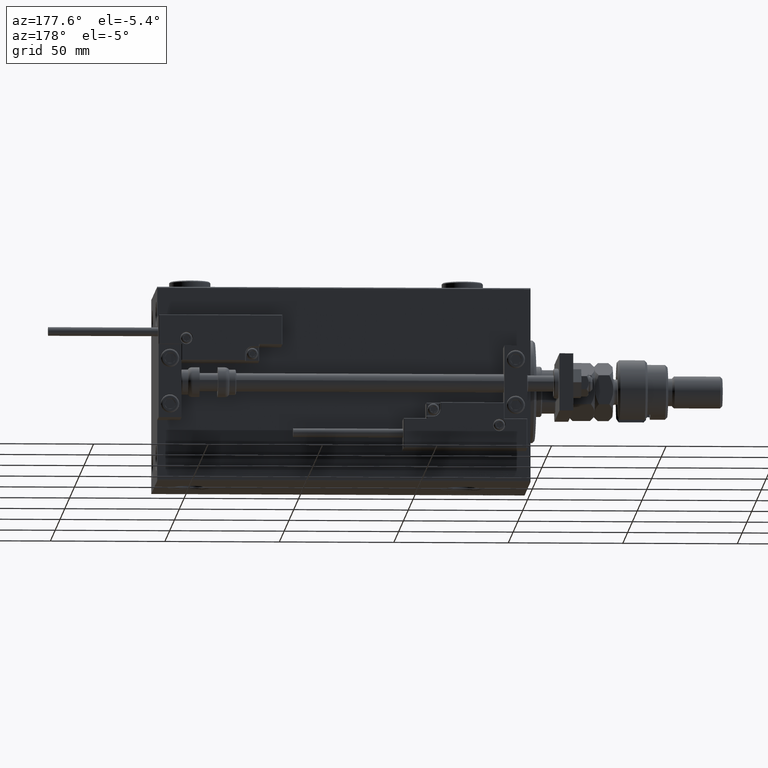
[diagram: clean part render]
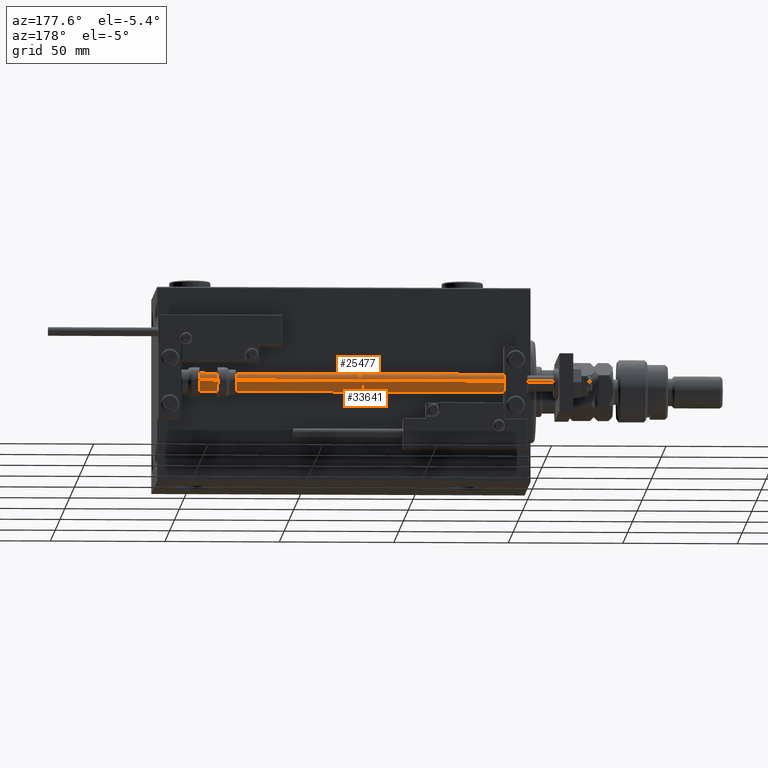
[diagram: same view with one multi-face feature highlighted, each face labeled with its STEP entity id]
A machine part, auxiliary view. The highlighted faces form ONE feature: a constant-radius fillet chain: 2 tangent blend faces with common blend radius 4 mm. The faces share edges in the B-rep.
Their STEP definitions:
[1] entity #25477 (Cylinder):
#4516 = ORIENTED_EDGE ( 'NONE', *, *, #31165, .T. ) ;
#7116 = EDGE_CURVE ( 'NONE', #43759, #46166, #7421, .T. ) ;
#7311 = DIRECTION ( 'NONE',  ( -0.000000000000000000, -0.000000000000000000, 1.000000000000000000 ) ) ;
#7421 = LINE ( 'NONE', #33985, #15289 ) ;
#7492 = CARTESIAN_POINT ( 'NONE',  ( 4.000000000000000000, 4.898587196589412829E-16, 2.000000000000029310 ) ) ;
#8348 = CARTESIAN_POINT ( 'NONE',  ( 4.000000000000000000, 4.898587196589412829E-16, 163.0000000000000000 ) ) ;
#15289 = VECTOR ( 'NONE', #20283, 1000.000000000000000 ) ;
#16064 = EDGE_LOOP ( 'NONE', ( #41804, #4516, #23869, #33164 ) ) ;
#16623 = DIRECTION ( 'NONE',  ( -0.000000000000000000, -0.000000000000000000, -1.000000000000000000 ) ) ;
#17542 = CYLINDRICAL_SURFACE ( 'NONE', #18477, 4.000000000000000000 ) ;
#18477 = AXIS2_PLACEMENT_3D ( 'NONE', #48596, #39646, #27033 ) ;
#19425 = CARTESIAN_POINT ( 'NONE',  ( 0.000000000000000000, 0.000000000000000000, 163.0000000000000000 ) ) ;
#20182 = DIRECTION ( 'NONE',  ( 1.000000000000000000, 0.000000000000000000, 0.000000000000000000 ) ) ;
#20283 = DIRECTION ( 'NONE',  ( -0.000000000000000000, -0.000000000000000000, -1.000000000000000000 ) ) ;
#21444 = FACE_OUTER_BOUND ( 'NONE', #16064, .T. ) ;
#21914 = LINE ( 'NONE', #24992, #48186 ) ;
#23869 = ORIENTED_EDGE ( 'NONE', *, *, #32689, .T. ) ;
#24982 = AXIS2_PLACEMENT_3D ( 'NONE', #28562, #7311, #20182 ) ;
#24992 = CARTESIAN_POINT ( 'NONE',  ( 4.000000000000000000, 4.898587196589412829E-16, 163.0000000000000000 ) ) ;
#25477 = ADVANCED_FACE ( 'NONE', ( #21444 ), #17542, .T. ) ;
#27033 = DIRECTION ( 'NONE',  ( -1.000000000000000000, 0.000000000000000000, 0.000000000000000000 ) ) ;
#27414 = VERTEX_POINT ( 'NONE', #7492 ) ;
#28562 = CARTESIAN_POINT ( 'NONE',  ( 0.000000000000000000, 0.000000000000000000, 2.000000000000029310 ) ) ;
#30204 = CARTESIAN_POINT ( 'NONE',  ( -4.000000000000000000, 0.000000000000000000, 2.000000000000029310 ) ) ;
#31165 = EDGE_CURVE ( 'NONE', #46437, #27414, #21914, .T. ) ;
#32689 = EDGE_CURVE ( 'NONE', #27414, #46166, #35740, .T. ) ;
#33132 = AXIS2_PLACEMENT_3D ( 'NONE', #19425, #54707, #45186 ) ;
#33164 = ORIENTED_EDGE ( 'NONE', *, *, #7116, .F. ) ;
#33985 = CARTESIAN_POINT ( 'NONE',  ( -4.000000000000000000, 0.000000000000000000, 163.0000000000000000 ) ) ;
#35740 = CIRCLE ( 'NONE', #24982, 4.000000000000000000 ) ;
#35823 = CIRCLE ( 'NONE', #33132, 4.000000000000000000 ) ;
#36132 = CARTESIAN_POINT ( 'NONE',  ( -4.000000000000000000, 0.000000000000000000, 163.0000000000000000 ) ) ;
#37801 = EDGE_CURVE ( 'NONE', #46437, #43759, #35823, .T. ) ;
#39646 = DIRECTION ( 'NONE',  ( -0.000000000000000000, -0.000000000000000000, -1.000000000000000000 ) ) ;
#41804 = ORIENTED_EDGE ( 'NONE', *, *, #37801, .F. ) ;
#43759 = VERTEX_POINT ( 'NONE', #36132 ) ;
#45186 = DIRECTION ( 'NONE',  ( 1.000000000000000000, 0.000000000000000000, 0.000000000000000000 ) ) ;
#46166 = VERTEX_POINT ( 'NONE', #30204 ) ;
#46437 = VERTEX_POINT ( 'NONE', #8348 ) ;
#48186 = VECTOR ( 'NONE', #16623, 1000.000000000000000 ) ;
#48596 = CARTESIAN_POINT ( 'NONE',  ( 0.000000000000000000, 0.000000000000000000, 163.0000000000000000 ) ) ;
#54707 = DIRECTION ( 'NONE',  ( 0.000000000000000000, 0.000000000000000000, 1.000000000000000000 ) ) ;
[2] entity #33641 (Cylinder):
#159 = CARTESIAN_POINT ( 'NONE',  ( 0.000000000000000000, 0.000000000000000000, 163.0000000000000000 ) ) ;
#1447 = DIRECTION ( 'NONE',  ( 0.000000000000000000, 0.000000000000000000, 1.000000000000000000 ) ) ;
#4403 = CARTESIAN_POINT ( 'NONE',  ( 0.000000000000000000, 0.000000000000000000, 2.000000000000029310 ) ) ;
#4882 = AXIS2_PLACEMENT_3D ( 'NONE', #10669, #1447, #18539 ) ;
#7077 = EDGE_LOOP ( 'NONE', ( #24803, #17957, #16569, #19376 ) ) ;
#7116 = EDGE_CURVE ( 'NONE', #43759, #46166, #7421, .T. ) ;
#7421 = LINE ( 'NONE', #33985, #15289 ) ;
#7492 = CARTESIAN_POINT ( 'NONE',  ( 4.000000000000000000, 4.898587196589412829E-16, 2.000000000000029310 ) ) ;
#8348 = CARTESIAN_POINT ( 'NONE',  ( 4.000000000000000000, 4.898587196589412829E-16, 163.0000000000000000 ) ) ;
#9881 = AXIS2_PLACEMENT_3D ( 'NONE', #159, #29540, #13058 ) ;
#10669 = CARTESIAN_POINT ( 'NONE',  ( 0.000000000000000000, 0.000000000000000000, 163.0000000000000000 ) ) ;
#13058 = DIRECTION ( 'NONE',  ( -1.000000000000000000, 0.000000000000000000, 0.000000000000000000 ) ) ;
#13895 = CIRCLE ( 'NONE', #45154, 4.000000000000000000 ) ;
#15289 = VECTOR ( 'NONE', #20283, 1000.000000000000000 ) ;
#16569 = ORIENTED_EDGE ( 'NONE', *, *, #7116, .T. ) ;
#16623 = DIRECTION ( 'NONE',  ( -0.000000000000000000, -0.000000000000000000, -1.000000000000000000 ) ) ;
#17957 = ORIENTED_EDGE ( 'NONE', *, *, #18257, .F. ) ;
#18257 = EDGE_CURVE ( 'NONE', #43759, #46437, #42439, .T. ) ;
#18539 = DIRECTION ( 'NONE',  ( 1.000000000000000000, 0.000000000000000000, 0.000000000000000000 ) ) ;
#18822 = EDGE_CURVE ( 'NONE', #46166, #27414, #13895, .T. ) ;
#19376 = ORIENTED_EDGE ( 'NONE', *, *, #18822, .T. ) ;
#20283 = DIRECTION ( 'NONE',  ( -0.000000000000000000, -0.000000000000000000, -1.000000000000000000 ) ) ;
#21914 = LINE ( 'NONE', #24992, #48186 ) ;
#24803 = ORIENTED_EDGE ( 'NONE', *, *, #31165, .F. ) ;
#24992 = CARTESIAN_POINT ( 'NONE',  ( 4.000000000000000000, 4.898587196589412829E-16, 163.0000000000000000 ) ) ;
#27414 = VERTEX_POINT ( 'NONE', #7492 ) ;
#29540 = DIRECTION ( 'NONE',  ( -0.000000000000000000, -0.000000000000000000, -1.000000000000000000 ) ) ;
#30141 = DIRECTION ( 'NONE',  ( -0.000000000000000000, -0.000000000000000000, 1.000000000000000000 ) ) ;
#30204 = CARTESIAN_POINT ( 'NONE',  ( -4.000000000000000000, 0.000000000000000000, 2.000000000000029310 ) ) ;
#31165 = EDGE_CURVE ( 'NONE', #46437, #27414, #21914, .T. ) ;
#33641 = ADVANCED_FACE ( 'NONE', ( #42433 ), #46075, .T. ) ;
#33985 = CARTESIAN_POINT ( 'NONE',  ( -4.000000000000000000, 0.000000000000000000, 163.0000000000000000 ) ) ;
#36132 = CARTESIAN_POINT ( 'NONE',  ( -4.000000000000000000, 0.000000000000000000, 163.0000000000000000 ) ) ;
#38833 = DIRECTION ( 'NONE',  ( 1.000000000000000000, 0.000000000000000000, 0.000000000000000000 ) ) ;
#42433 = FACE_OUTER_BOUND ( 'NONE', #7077, .T. ) ;
#42439 = CIRCLE ( 'NONE', #4882, 4.000000000000000000 ) ;
#43759 = VERTEX_POINT ( 'NONE', #36132 ) ;
#45154 = AXIS2_PLACEMENT_3D ( 'NONE', #4403, #30141, #38833 ) ;
#46075 = CYLINDRICAL_SURFACE ( 'NONE', #9881, 4.000000000000000000 ) ;
#46166 = VERTEX_POINT ( 'NONE', #30204 ) ;
#46437 = VERTEX_POINT ( 'NONE', #8348 ) ;
#48186 = VECTOR ( 'NONE', #16623, 1000.000000000000000 ) ;